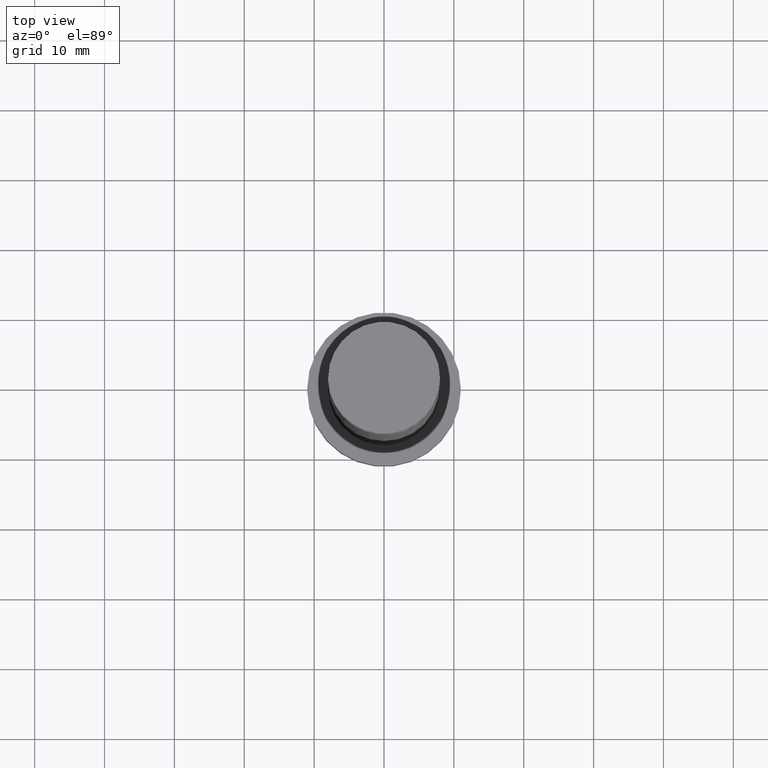
[diagram: clean part render]
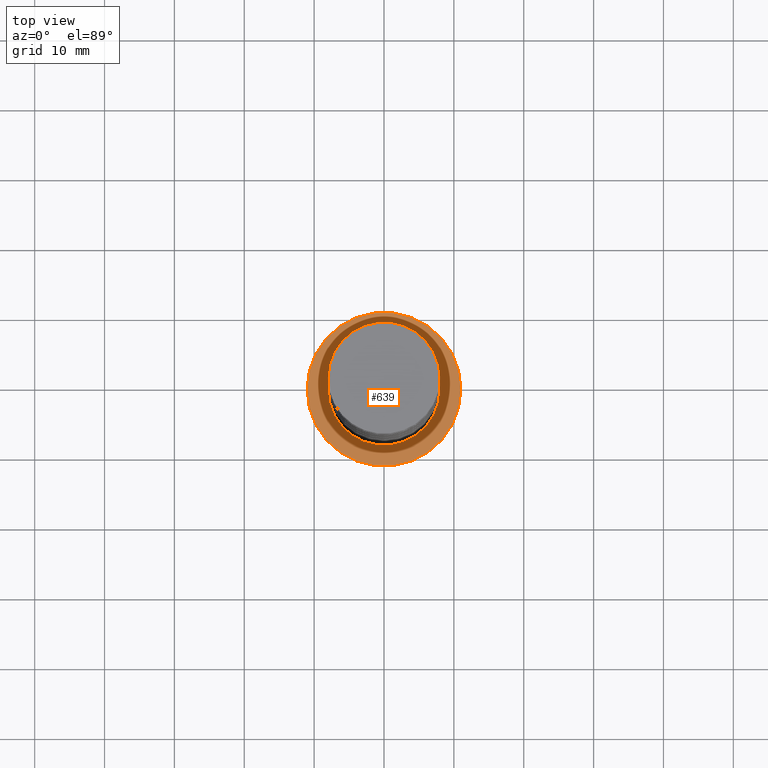
[diagram: same view with one face highlighted and labeled with its STEP entity id]
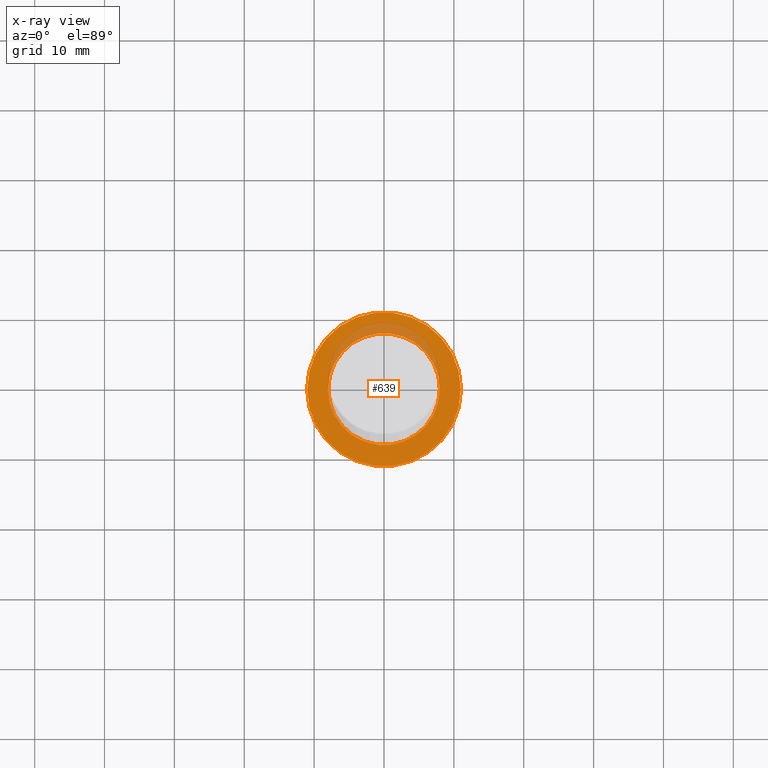
[diagram: x-ray of the same camera — body ghosted, the highlighted face saturated]
A machine part, top view. The second image highlights one B-rep face of the part: STEP entity #639.
The next image is the same camera in x-ray: the body ghosted, the highlighted face saturated — about 15% of this face is hidden behind the body in this view.
In plain terms, the highlighted planar face has unit normal (0, 0, 1).
Its self-contained STEP definition (entity closure, byte-faithful):
#6 = AXIS2_PLACEMENT_3D ( 'NONE', #465, #1269, #800 ) ;
#34 = DIRECTION ( 'NONE',  ( 0.000000000000000000, 0.000000000000000000, 1.000000000000000000 ) ) ;
#108 = EDGE_CURVE ( 'NONE', #1281, #731, #426, .T. ) ;
#112 = ORIENTED_EDGE ( 'NONE', *, *, #787, .F. ) ;
#117 = CARTESIAN_POINT ( 'NONE',  ( 0.000000000000000000, 0.000000000000000000, 7.000000000000000000 ) ) ;
#144 = ORIENTED_EDGE ( 'NONE', *, *, #108, .F. ) ;
#214 = CARTESIAN_POINT ( 'NONE',  ( -11.00000000000000000, 0.000000000000000000, 7.000000000000000000 ) ) ;
#226 = EDGE_LOOP ( 'NONE', ( #144, #112 ) ) ;
#231 = ORIENTED_EDGE ( 'NONE', *, *, #272, .T. ) ;
#247 = AXIS2_PLACEMENT_3D ( 'NONE', #534, #1456, #1345 ) ;
#272 = EDGE_CURVE ( 'NONE', #1394, #1332, #549, .T. ) ;
#426 = CIRCLE ( 'NONE', #1033, 8.000000000000000000 ) ;
#465 = CARTESIAN_POINT ( 'NONE',  ( 0.000000000000000000, 0.000000000000000000, 7.000000000000000000 ) ) ;
#534 = CARTESIAN_POINT ( 'NONE',  ( 0.000000000000000000, 0.000000000000000000, 7.000000000000000000 ) ) ;
#549 = CIRCLE ( 'NONE', #1378, 11.00000000000000000 ) ;
#580 = DIRECTION ( 'NONE',  ( 0.000000000000000000, 0.000000000000000000, 1.000000000000000000 ) ) ;
#639 = ADVANCED_FACE ( 'NONE', ( #902, #780 ), #653, .T. ) ;
#653 = PLANE ( 'NONE',  #247 ) ;
#671 = CARTESIAN_POINT ( 'NONE',  ( 8.000000000000000000, 9.797174393178823685E-16, 7.000000000000000000 ) ) ;
#691 = CARTESIAN_POINT ( 'NONE',  ( -8.000000000000000000, 0.000000000000000000, 7.000000000000000000 ) ) ;
#731 = VERTEX_POINT ( 'NONE', #671 ) ;
#763 = CIRCLE ( 'NONE', #6, 8.000000000000000000 ) ;
#780 = FACE_OUTER_BOUND ( 'NONE', #1158, .T. ) ;
#787 = EDGE_CURVE ( 'NONE', #731, #1281, #763, .T. ) ;
#796 = EDGE_CURVE ( 'NONE', #1332, #1394, #1031, .T. ) ;
#797 = CARTESIAN_POINT ( 'NONE',  ( 11.00000000000000000, 1.347111479062088405E-15, 7.000000000000000000 ) ) ;
#800 = DIRECTION ( 'NONE',  ( 1.000000000000000000, 0.000000000000000000, 0.000000000000000000 ) ) ;
#875 = ORIENTED_EDGE ( 'NONE', *, *, #796, .T. ) ;
#895 = AXIS2_PLACEMENT_3D ( 'NONE', #1366, #580, #1253 ) ;
#902 = FACE_BOUND ( 'NONE', #226, .T. ) ;
#981 = CARTESIAN_POINT ( 'NONE',  ( 0.000000000000000000, 0.000000000000000000, 7.000000000000000000 ) ) ;
#1031 = CIRCLE ( 'NONE', #895, 11.00000000000000000 ) ;
#1033 = AXIS2_PLACEMENT_3D ( 'NONE', #981, #34, #1412 ) ;
#1143 = DIRECTION ( 'NONE',  ( 0.000000000000000000, 0.000000000000000000, 1.000000000000000000 ) ) ;
#1158 = EDGE_LOOP ( 'NONE', ( #875, #231 ) ) ;
#1253 = DIRECTION ( 'NONE',  ( 1.000000000000000000, 0.000000000000000000, 0.000000000000000000 ) ) ;
#1269 = DIRECTION ( 'NONE',  ( 0.000000000000000000, 0.000000000000000000, 1.000000000000000000 ) ) ;
#1281 = VERTEX_POINT ( 'NONE', #691 ) ;
#1332 = VERTEX_POINT ( 'NONE', #214 ) ;
#1345 = DIRECTION ( 'NONE',  ( 1.000000000000000000, 0.000000000000000000, -0.000000000000000000 ) ) ;
#1357 = DIRECTION ( 'NONE',  ( 1.000000000000000000, 0.000000000000000000, 0.000000000000000000 ) ) ;
#1366 = CARTESIAN_POINT ( 'NONE',  ( 0.000000000000000000, 0.000000000000000000, 7.000000000000000000 ) ) ;
#1378 = AXIS2_PLACEMENT_3D ( 'NONE', #117, #1143, #1357 ) ;
#1394 = VERTEX_POINT ( 'NONE', #797 ) ;
#1412 = DIRECTION ( 'NONE',  ( 1.000000000000000000, 0.000000000000000000, 0.000000000000000000 ) ) ;
#1456 = DIRECTION ( 'NONE',  ( 0.000000000000000000, 0.000000000000000000, 1.000000000000000000 ) ) ;